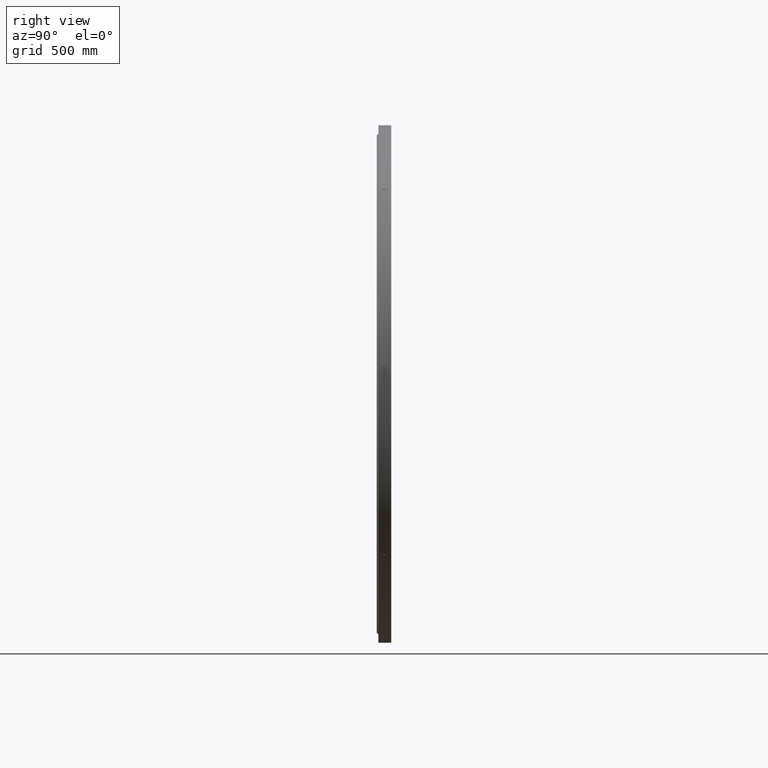
[diagram: clean part render]
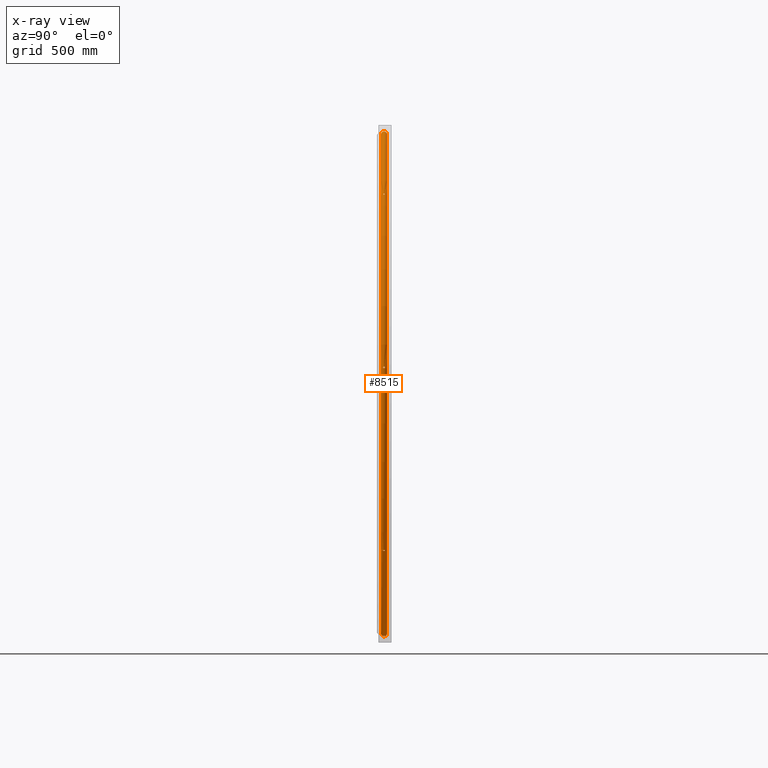
[diagram: x-ray — body ghosted, one internal face saturated and labeled with its STEP entity id]
A machine part, right view, then the same camera in x-ray: the body is ghosted and one INTERNAL B-rep face — a face not visible from any outside direction — is saturated and labeled: STEP entity #8515.
In plain terms, the highlighted toroidal blend (fillet) surface has major radius 1537 mm and minor (blend) radius 19.05 mm.
Its self-contained STEP definition (entity closure, byte-faithful):
#68 = CARTESIAN_POINT ( 'NONE',  ( 1026.068574547752000, 4.470684510650206000, 1169.110701674504100 ) ) ;
#88 = CARTESIAN_POINT ( 'NONE',  ( 1167.833040331638100, 3.576250378631848500, -1027.816151715354200 ) ) ;
#179 = CARTESIAN_POINT ( 'NONE',  ( 103.7335033434232400, 4.044070703040351800, -1552.153688640694600 ) ) ;
#354 = CARTESIAN_POINT ( 'NONE',  ( 1022.863481409826200, 1.996019600897573500, 1172.485257891654600 ) ) ;
#374 = CARTESIAN_POINT ( 'NONE',  ( 1171.456206885986100, 3.575814996484480100, -1023.684840655134800 ) ) ;
#1028 = CARTESIAN_POINT ( 'NONE',  ( 8.532063944244328000E-014, -5.370612075227947800E-014, 1537.000000000000000 ) ) ;
#1084 = CARTESIAN_POINT ( 'NONE',  ( 106.1132180557976500, -1.172487871866465300, -1552.393664083832200 ) ) ;
#1386 = CARTESIAN_POINT ( 'NONE',  ( 102.0279119823355000, -4.500108279681671600, -1552.161200736631600 ) ) ;
#1678 = CARTESIAN_POINT ( 'NONE',  ( 97.50700281360441600, -1.454079378452950000, -1552.938236373818700 ) ) ;
#2036 = CARTESIAN_POINT ( 'NONE',  ( 1172.483974999051700, -1.999570336455599500, -1022.864435346470400 ) ) ;
#2335 = CARTESIAN_POINT ( 'NONE',  ( 1169.112051382850500, -4.471239560161251300, -1026.066839112064400 ) ) ;
#2393 = B_SPLINE_CURVE_WITH_KNOTS ( 'NONE', 3,
 ( #25312, #65263, #45415, #5467, #52172, #12166, #58871, #18854, #65565, #25583, #72256, #32263, #78972, #38964, #85698, #45699, #5740, #52469, #12435, #59159, #19130, #65846, #25868, #72534, #32542, #79260, #39252, #85985, #45987, #6021, #52746, #12716, #59433, #19413 ),
 .UNSPECIFIED., .F., .F.,
 ( 4, 2, 2, 2, 2, 2, 2, 2, 2, 2, 2, 2, 2, 2, 2, 2, 4 ),
 ( 0.02598670309123746500, 0.02686895547364308000, 0.02775120785604869400, 0.02863346023845430800, 0.02951571262085992500, 0.03039796500326554000, 0.03128021738567115400, 0.03216246976807676800, 0.03304472215048238200, 0.03392697453288799600, 0.03480922691529361000, 0.03569147929769922500, 0.03657373168010483900, 0.03745598406251045300, 0.03833823644491607400, 0.03922048882732168100, 0.04010274120972729500 ),
 .UNSPECIFIED. ) ;
#2498 = CARTESIAN_POINT ( 'NONE',  ( 1552.283380692319300, -2.746224431392914100, 105.3265789109691800 ) ) ;
#2619 = CARTESIAN_POINT ( 'NONE',  ( 1166.942711324359800, -0.5938470493316743100, -1029.327106995369400 ) ) ;
#2789 = CARTESIAN_POINT ( 'NONE',  ( 1552.329564649464400, -4.269282064224287700, 100.2894174699930400 ) ) ;
#3084 = CARTESIAN_POINT ( 'NONE',  ( 1553.006198644755800, -2.379884953661671500E-008, 97.27974851409064200 ) ) ;
#3779 = DIRECTION ( 'NONE',  ( 5.551115123125782700E-017, -3.494217355385782500E-017, 1.000000000000000000 ) ) ;
#4013 = CARTESIAN_POINT ( 'NONE',  ( 1024.760779234557500, -4.354733526317538400, 1170.293896168964700 ) ) ;
#4296 = CARTESIAN_POINT ( 'NONE',  ( 1029.146030456351600, -1.451937309999991500, 1167.040614477145000 ) ) ;
#5467 = CARTESIAN_POINT ( 'NONE',  ( 1552.963598053093400, 1.168464269267725000, 97.42154169125096500 ) ) ;
#5740 = CARTESIAN_POINT ( 'NONE',  ( 1552.199525603559800, 4.500199193800280100, 101.4428536068104600 ) ) ;
#6021 = CARTESIAN_POINT ( 'NONE',  ( 1552.379851877802100, 1.453914780385336100, 106.0262772918575500 ) ) ;
#6035 = VERTEX_POINT ( 'NONE', #14049 ) ;
#6362 = CARTESIAN_POINT ( 'NONE',  ( 1553.006198644755800, -2.379884953661671500E-008, 97.27974851409064200 ) ) ;
#6455 = CARTESIAN_POINT ( 'NONE',  ( 1029.145221252766100, 1.454341194157232000, 1167.041060527069500 ) ) ;
#6480 = CARTESIAN_POINT ( 'NONE',  ( 1166.928384132883100, -2.379472440795326900E-008, -1029.354044440016000 ) ) ;
#6485 = CARTESIAN_POINT ( 'NONE',  ( 1166.928384133160100, 0.2964284489836880300, -1029.354044440261100 ) ) ;
#6584 = CARTESIAN_POINT ( 'NONE',  ( 99.00553180447890600, 3.575238093566202000, -1552.558716721340300 ) ) ;
#6743 = CARTESIAN_POINT ( 'NONE',  ( 1025.394509455408300, 4.499804513672133400, 1169.692446123640100 ) ) ;
#6770 = CARTESIAN_POINT ( 'NONE',  ( 1168.255665788939700, 4.042462189773858400, -1027.191067419098500 ) ) ;
#6867 = CARTESIAN_POINT ( 'NONE',  ( 104.4863102507171000, 3.578598399700045000, -1552.198834721488300 ) ) ;
#7044 = CARTESIAN_POINT ( 'NONE',  ( 1022.673818678627800, 1.166746327907014900, 1172.742693264585800 ) ) ;
#7065 = CARTESIAN_POINT ( 'NONE',  ( 1171.958574252929600, 2.973008810106527300, -1023.270254667113500 ) ) ;
#7449 = B_SPLINE_CURVE_WITH_KNOTS ( 'NONE', 3,
 ( #53194, #6485, #59897, #19877, #66576, #26614, #73280, #33264, #80005, #39993, #88, #46725, #6770, #53491, #13439, #60181, #20167, #66878, #26894, #73553, #33567, #80285, #40267, #374, #47026, #7065, #53768, #13729, #60463, #20468, #67177, #27186, #73839, #33838 ),
 .UNSPECIFIED., .F., .F.,
 ( 4, 2, 2, 2, 2, 2, 2, 2, 2, 2, 2, 2, 2, 2, 2, 2, 4 ),
 ( 0.02122922010065950900, 0.02211150302345888200, 0.02299378594625825800, 0.02387606886905763200, 0.02475835179185700800, 0.02564063471465638500, 0.02652291763745576200, 0.02740520056025513900, 0.02828748348305451500, 0.02916976640585389200, 0.03005204932865326500, 0.03093433225145264200, 0.03181661517425202200, 0.03269889809705139900, 0.03358118101985076800, 0.03446346394265014500, 0.03534574686544952200 ),
 .UNSPECIFIED. ) ;
#7554 = EDGE_CURVE ( 'NONE', #23698, #37931, #55807, .T. ) ;
#7759 = DIRECTION ( 'NONE',  ( -1.173697223544190700E-016, 1.000000000000000000, 0.0000000000000000000 ) ) ;
#7810 = CARTESIAN_POINT ( 'NONE',  ( 105.7980349890331100, -1.997238590760712600, -1552.345901393013500 ) ) ;
#8033 = VERTEX_POINT ( 'NONE', #49688 ) ;
#8107 = CARTESIAN_POINT ( 'NONE',  ( 101.1477059528877900, -4.471070812201745100, -1552.225953568388800 ) ) ;
#8398 = CARTESIAN_POINT ( 'NONE',  ( 97.30857004170768200, -0.5912034960023623300, -1552.997390006934000 ) ) ;
#8424 = EDGE_CURVE ( 'NONE', #51907, #47244, #50799, .T. ) ;
#8515 = ADVANCED_FACE ( 'NONE', ( #54902, #68420, #17220, #50712, #32869 ), #15131, .F. ) ;
#8763 = CARTESIAN_POINT ( 'NONE',  ( 1172.106995932287900, -2.746589710825422200, -1023.153162167013100 ) ) ;
#9054 = CARTESIAN_POINT ( 'NONE',  ( 1168.577308777239300, -4.268780503025776200, -1026.748494504847700 ) ) ;
#9099 = CIRCLE ( 'NONE', #44732, 1538.905000000000000 ) ;
#9211 = CARTESIAN_POINT ( 'NONE',  ( 1552.218705381422500, -3.391153007399380300, 104.7167138396414700 ) ) ;
#9328 = CARTESIAN_POINT ( 'NONE',  ( 1166.928384132883100, -2.379472440795326900E-008, -1029.354044440016000 ) ) ;
#9448 = VERTEX_POINT ( 'NONE', #70225 ) ;
#9500 = CARTESIAN_POINT ( 'NONE',  ( 1552.462132327333600, -3.902539688285838500, 99.48926361233323200 ) ) ;
#10441 = CARTESIAN_POINT ( 'NONE',  ( 1022.674477220824100, -1.170606949249357400, 1172.741786228228400 ) ) ;
#10725 = CARTESIAN_POINT ( 'NONE',  ( 1025.398286893566100, -4.499978597260449600, 1169.689077780666100 ) ) ;
#11023 = CARTESIAN_POINT ( 'NONE',  ( 1029.327064853144700, -0.5943697600977188000, 1166.942733525543200 ) ) ;
#11422 = EDGE_LOOP ( 'NONE', ( #19603, #77514 ) ) ;
#11985 = ORIENTED_EDGE ( 'NONE', *, *, #51910, .T. ) ;
#12166 = CARTESIAN_POINT ( 'NONE',  ( 1552.874537766309500, 1.999088511272853100, 97.72974613083052000 ) ) ;
#12435 = CARTESIAN_POINT ( 'NONE',  ( 1552.148806258800500, 4.470659245727584400, 102.3262388793037400 ) ) ;
#12699 = CARTESIAN_POINT ( 'NONE',  ( 97.27974851410951400, 0.2980516688028156900, -1553.006198645127100 ) ) ;
#12716 = CARTESIAN_POINT ( 'NONE',  ( 1552.412657750543300, 0.5888660772816694000, 106.2311120280972000 ) ) ;
#13129 = CARTESIAN_POINT ( 'NONE',  ( 1028.816909656905000, 2.262411340733878600, 1167.224405065906700 ) ) ;
#13251 = CARTESIAN_POINT ( 'NONE',  ( 99.74940251727159100, 4.043252629921354900, -1552.414991605765000 ) ) ;
#13417 = CARTESIAN_POINT ( 'NONE',  ( 1024.762489438520600, 4.355202837823058300, 1170.292249436456400 ) ) ;
#13439 = CARTESIAN_POINT ( 'NONE',  ( 1168.749308649423000, 4.355278607986430300, -1026.521850149995300 ) ) ;
#13541 = CARTESIAN_POINT ( 'NONE',  ( 105.1376346369368100, 2.974289664004921900, -1552.261069401329000 ) ) ;
#13700 = CARTESIAN_POINT ( 'NONE',  ( 1022.587486172944800, 0.2959550994974102800, 1172.862496469065900 ) ) ;
#13729 = CARTESIAN_POINT ( 'NONE',  ( 1172.372687205288700, 2.254065275659793000, -1022.947963432681700 ) ) ;
#14049 = CARTESIAN_POINT ( 'NONE',  ( 106.2604788232326600, -2.377304829897340700E-008, -1552.417570481685100 ) ) ;
#14468 = CARTESIAN_POINT ( 'NONE',  ( 105.3257107417843200, -2.747337632154160900, -1552.283275772996800 ) ) ;
#14761 = CARTESIAN_POINT ( 'NONE',  ( 100.2864422428050400, -4.268193813650462700, -1552.330005886407700 ) ) ;
#15028 = CARTESIAN_POINT ( 'NONE',  ( 97.27974851408521300, -2.377324706183988700E-008, -1553.006198644756500 ) ) ;
#15131 = TOROIDAL_SURFACE ( 'NONE', #40063, 1537.000000000000000, 19.05000000000000100 ) ;
#15397 = CARTESIAN_POINT ( 'NONE',  ( 1171.629588240621600, -3.392035806027530400, -1023.539030243317600 ) ) ;
#15619 = VERTEX_POINT ( 'NONE', #55590 ) ;
#15685 = CARTESIAN_POINT ( 'NONE',  ( 1168.106197821670100, -3.902779886541058100, -1027.406713632281900 ) ) ;
#15851 = CARTESIAN_POINT ( 'NONE',  ( 1552.166456701556200, -3.903578588392556000, 103.9972053930104500 ) ) ;
#16136 = CARTESIAN_POINT ( 'NONE',  ( 1552.607530741587700, -3.391291546224850500, 98.78429020835216100 ) ) ;
#17090 = CARTESIAN_POINT ( 'NONE',  ( 1022.864938066164100, -2.001347151743434700, 1172.483300818994600 ) ) ;
#17220 = FACE_BOUND ( 'NONE', #42985, .T. ) ;
#17374 = CARTESIAN_POINT ( 'NONE',  ( 1026.068604916877800, -4.470841004603098400, 1169.110628225034800 ) ) ;
#17668 = CARTESIAN_POINT ( 'NONE',  ( 1029.354044440012100, -2.378793016543926100E-008, 1166.928384132886500 ) ) ;
#18854 = CARTESIAN_POINT ( 'NONE',  ( 1552.750579554100300, 2.749746509675981400, 98.19078100115830000 ) ) ;
#18958 = EDGE_CURVE ( 'NONE', #27614, #43774, #69455, .T. ) ;
#19130 = CARTESIAN_POINT ( 'NONE',  ( 1552.139630518416700, 4.267670340619402800, 103.1928504492054400 ) ) ;
#19413 = CARTESIAN_POINT ( 'NONE',  ( 1552.417570481684600, -2.376146852504746100E-008, 106.2604788232380700 ) ) ;
#19455 = ORIENTED_EDGE ( 'NONE', *, *, #76942, .T. ) ;
#19560 = CARTESIAN_POINT ( 'NONE',  ( 1029.327930915142400, 0.5879700314654107100, 1166.942269198008700 ) ) ;
#19603 = ORIENTED_EDGE ( 'NONE', *, *, #8424, .T. ) ;
#19850 = CARTESIAN_POINT ( 'NONE',  ( 1028.366859596643100, 2.975595670417421300, 1167.488445950109700 ) ) ;
#19877 = CARTESIAN_POINT ( 'NONE',  ( 1166.998404929896000, 1.167215912675726400, -1029.223878913733200 ) ) ;
#19977 = CARTESIAN_POINT ( 'NONE',  ( 100.5684513968034300, 4.354913208691911600, -1552.291310096133000 ) ) ;
#20147 = CARTESIAN_POINT ( 'NONE',  ( 1024.185095084927800, 4.042021237418400600, 1170.891959987583300 ) ) ;
#20167 = CARTESIAN_POINT ( 'NONE',  ( 1169.300670464422900, 4.500204480252392600, -1025.841098262904300 ) ) ;
#20262 = CARTESIAN_POINT ( 'NONE',  ( 105.6542954535019900, 2.262027608300856600, -1552.325459025035600 ) ) ;
#20468 = CARTESIAN_POINT ( 'NONE',  ( 1172.670270857164500, 1.453608511794803000, -1022.726385284425300 ) ) ;
#20705 = CIRCLE ( 'NONE', #26563, 19.05000000000000100 ) ;
#20726 = AXIS2_PLACEMENT_3D ( 'NONE', #71668, #31657, #78384 ) ;
#20810 = CIRCLE ( 'NONE', #45006, 1538.905000000000000 ) ;
#21206 = CARTESIAN_POINT ( 'NONE',  ( 104.7163894540012000, -3.391646612059155500, -1552.218658760124800 ) ) ;
#21502 = CARTESIAN_POINT ( 'NONE',  ( 99.49071104553148400, -3.903583895031618800, -1552.461834586414400 ) ) ;
#22161 = CARTESIAN_POINT ( 'NONE',  ( 1171.085145407885900, -3.903044158585703200, -1024.009784827401100 ) ) ;
#22319 = CARTESIAN_POINT ( 'NONE',  ( 1552.417570481315400, -0.2962567708934114000, 106.2604788232146800 ) ) ;
#22433 = CARTESIAN_POINT ( 'NONE',  ( 1167.709977365512500, -3.390523124674452500, -1028.008890583456200 ) ) ;
#22553 = EDGE_LOOP ( 'NONE', ( #36916, #71897 ) ) ;
#22606 = CARTESIAN_POINT ( 'NONE',  ( 1552.139594453312200, -4.268831596709211400, 103.1893225440930700 ) ) ;
#22853 = CARTESIAN_POINT ( 'NONE',  ( 1552.417570481684600, -2.376146852504746100E-008, 106.2604788232380700 ) ) ;
#22890 = CARTESIAN_POINT ( 'NONE',  ( 1552.751351324721100, -2.745698369718898100, 98.18779130385883000 ) ) ;
#22955 = CARTESIAN_POINT ( 'NONE',  ( 1029.354044440012100, -2.378793016543926100E-008, 1166.928384132886500 ) ) ;
#23698 = VERTEX_POINT ( 'NONE', #22853 ) ;
#23856 = CARTESIAN_POINT ( 'NONE',  ( 1023.153002405297200, -2.746284179435490200, 1172.107198205240100 ) ) ;
#24141 = CARTESIAN_POINT ( 'NONE',  ( 1026.747654715371300, -4.269173971483819100, 1168.577927929243500 ) ) ;
#24494 = CARTESIAN_POINT ( 'NONE',  ( -2.224685655509409600E-015, 18.95451067688110000, 6.623118017000307300E-016 ) ) ;
#25028 = EDGE_LOOP ( 'NONE', ( #52397, #67906, #11985, #64251 ) ) ;
#25312 = CARTESIAN_POINT ( 'NONE',  ( 1553.006198644755800, -2.379884953661671500E-008, 97.27974851409064200 ) ) ;
#25583 = CARTESIAN_POINT ( 'NONE',  ( 1552.607580412736300, 3.391014014548511000, 98.78411362342646400 ) ) ;
#25658 = EDGE_CURVE ( 'NONE', #65403, #61868, #20705, .T. ) ;
#25868 = CARTESIAN_POINT ( 'NONE',  ( 1552.166428700329100, 3.903820641655653600, 103.9970112146440300 ) ) ;
#26417 = CARTESIAN_POINT ( 'NONE',  ( 97.42167571745667900, 1.168434361406674800, -1552.963559160347600 ) ) ;
#26563 = AXIS2_PLACEMENT_3D ( 'NONE', #1028, #47717, #7759 ) ;
#26589 = CARTESIAN_POINT ( 'NONE',  ( 1027.812238596074600, 3.579598243953703700, 1167.835611865939000 ) ) ;
#26614 = CARTESIAN_POINT ( 'NONE',  ( 1167.153013100834600, 1.997014415088915100, -1028.943589800386900 ) ) ;
#26703 = CARTESIAN_POINT ( 'NONE',  ( 101.4383756555668600, 4.499802246626555500, -1552.199914658202900 ) ) ;
#26867 = CARTESIAN_POINT ( 'NONE',  ( 1023.684075777377500, 3.575035556950150200, 1171.457082019563100 ) ) ;
#26894 = CARTESIAN_POINT ( 'NONE',  ( 1169.891966017808700, 4.470325513127902700, -1025.177844611158400 ) ) ;
#26988 = CARTESIAN_POINT ( 'NONE',  ( 106.0262743802301100, 1.454176687682188000, -1552.379848270134500 ) ) ;
#27186 = CARTESIAN_POINT ( 'NONE',  ( 1172.838482900169800, 0.5874797101241371300, -1022.604614778914500 ) ) ;
#27614 = VERTEX_POINT ( 'NONE', #22955 ) ;
#27912 = CARTESIAN_POINT ( 'NONE',  ( 103.9977191610089700, -3.903156365789787000, -1552.166501555954700 ) ) ;
#28208 = CARTESIAN_POINT ( 'NONE',  ( 98.78191213019917400, -3.388940999387574800, -1552.608085928958000 ) ) ;
#28854 = CARTESIAN_POINT ( 'NONE',  ( 1170.493279330895100, -4.269365576693310500, -1024.563547704898200 ) ) ;
#29013 = CARTESIAN_POINT ( 'NONE',  ( 1552.417570481684600, -2.376146852504746100E-008, 106.2604788232380700 ) ) ;
#29125 = CARTESIAN_POINT ( 'NONE',  ( 1167.389975316641100, -2.744992966766470800, -1028.532242390019300 ) ) ;
#29300 = CARTESIAN_POINT ( 'NONE',  ( 1552.148865370395500, -4.471232150412294700, 102.3232732397476200 ) ) ;
#29581 = CARTESIAN_POINT ( 'NONE',  ( 1552.874665109963200, -1.998256507511435100, 97.72928791289530200 ) ) ;
#30528 = CARTESIAN_POINT ( 'NONE',  ( 1023.538628496826200, -3.391385132191246000, 1171.630082836203400 ) ) ;
#30542 = CARTESIAN_POINT ( 'NONE',  ( 8.320170253002940500E-014, 18.95451067688105000, 1538.905000000000000 ) ) ;
#30789 = CARTESIAN_POINT ( 'NONE',  ( 1027.406963282748800, -3.902553189679820000, 1168.106036012128900 ) ) ;
#31148 = DIRECTION ( 'NONE',  ( 5.551115123125782700E-017, -3.381735992754862400E-017, 1.000000000000000000 ) ) ;
#31657 = DIRECTION ( 'NONE',  ( -1.000000000000000000, -1.173697223544192200E-016, 1.779758311459931500E-016 ) ) ;
#32263 = CARTESIAN_POINT ( 'NONE',  ( 1552.461539730949200, 3.904370529515520900, 99.49245233928203900 ) ) ;
#32542 = CARTESIAN_POINT ( 'NONE',  ( 1552.219096563681700, 3.387389717927626000, 104.7209411408076400 ) ) ;
#32787 = CARTESIAN_POINT ( 'NONE',  ( 97.27974851408521300, -2.377324706183988700E-008, -1553.006198644756500 ) ) ;
#32869 = FACE_OUTER_BOUND ( 'NONE', #25028, .T. ) ;
#33085 = CARTESIAN_POINT ( 'NONE',  ( 97.72982507352985200, 1.999246505626453200, -1552.874515640199000 ) ) ;
#33241 = CARTESIAN_POINT ( 'NONE',  ( 1027.190428046714000, 4.043070734539845100, 1168.256061373328100 ) ) ;
#33264 = CARTESIAN_POINT ( 'NONE',  ( 1167.390512969647900, 2.746680928036315400, -1028.531309560661400 ) ) ;
#33367 = CARTESIAN_POINT ( 'NONE',  ( 102.3253213630553700, 4.470764270604808700, -1552.148840885857700 ) ) ;
#33539 = CARTESIAN_POINT ( 'NONE',  ( 1023.270700846022700, 2.973801303869171100, 1171.958016813694300 ) ) ;
#33567 = CARTESIAN_POINT ( 'NONE',  ( 1170.496970551271700, 4.267651559176118600, -1024.559934848581200 ) ) ;
#33656 = CARTESIAN_POINT ( 'NONE',  ( 106.2314214603214400, 0.5881592850594403700, -1552.412706261180800 ) ) ;
#33838 = CARTESIAN_POINT ( 'NONE',  ( 1172.862496468783800, -2.376774636049053200E-008, -1022.587486172705100 ) ) ;
#34284 = CARTESIAN_POINT ( 'NONE',  ( 106.2604788232326600, -2.377304829897340700E-008, -1552.417570481685100 ) ) ;
#34293 = CIRCLE ( 'NONE', #20726, 19.05000000000001100 ) ;
#34577 = CARTESIAN_POINT ( 'NONE',  ( 103.1864108472687000, -4.269985030451879400, -1552.139528240124000 ) ) ;
#34857 = CARTESIAN_POINT ( 'NONE',  ( 98.18670527353587800, -2.744379599336644700, -1552.751625743212600 ) ) ;
#35217 = CARTESIAN_POINT ( 'NONE',  ( 1172.862496468783800, -2.376774636049053200E-008, -1022.587486172705100 ) ) ;
#35523 = CARTESIAN_POINT ( 'NONE',  ( 1169.890484043817900, -4.470716295608984800, -1025.179394489807900 ) ) ;
#35685 = CARTESIAN_POINT ( 'NONE',  ( 1552.379887656223000, -1.453678916686151000, 106.0265530792288600 ) ) ;
#35807 = CARTESIAN_POINT ( 'NONE',  ( 1167.153775076259500, -2.000555040280907400, -1028.942221145196100 ) ) ;
#35969 = CARTESIAN_POINT ( 'NONE',  ( 1552.199594584710900, -4.500036516107321000, 101.4423986251895500 ) ) ;
#36248 = CARTESIAN_POINT ( 'NONE',  ( 1552.963342251541900, -1.171270613879505000, 97.42240591737561300 ) ) ;
#36909 = CARTESIAN_POINT ( 'NONE',  ( 1022.587486172701100, -2.378512238209269100E-008, 1172.862496468787200 ) ) ;
#36916 = ORIENTED_EDGE ( 'NONE', *, *, #66592, .T. ) ;
#37208 = CARTESIAN_POINT ( 'NONE',  ( 1024.010134198959100, -3.903413199811064600, 1171.084743261205400 ) ) ;
#37493 = CARTESIAN_POINT ( 'NONE',  ( 1028.008352332648200, -3.391175505510066700, 1167.710307600744700 ) ) ;
#37783 = EDGE_CURVE ( 'NONE', #9448, #65403, #9099, .T. ) ;
#37931 = VERTEX_POINT ( 'NONE', #6362 ) ;
#38088 = ORIENTED_EDGE ( 'NONE', *, *, #49242, .T. ) ;
#38964 = CARTESIAN_POINT ( 'NONE',  ( 1552.329003408244000, 4.270731928432797800, 100.2930478346999900 ) ) ;
#39252 = CARTESIAN_POINT ( 'NONE',  ( 1552.283538847921400, 2.744654752209333200, 105.3279456169721900 ) ) ;
#39509 = CARTESIAN_POINT ( 'NONE',  ( 2.224685655509409900E-015, -18.95451067688110700, -6.623118017000310300E-016 ) ) ;
#39688 = CARTESIAN_POINT ( 'NONE',  ( 1029.354044440255600, 0.2953037956531539600, 1166.928384133163000 ) ) ;
#39800 = CARTESIAN_POINT ( 'NONE',  ( 98.18760006352822200, 2.745590703248596200, -1552.751394756518700 ) ) ;
#39969 = CARTESIAN_POINT ( 'NONE',  ( 1026.519457201447000, 4.355960980283580100, 1168.751194605165200 ) ) ;
#39993 = CARTESIAN_POINT ( 'NONE',  ( 1167.708604893056400, 3.388149640080345000, -1028.011081401067300 ) ) ;
#40063 = AXIS2_PLACEMENT_3D ( 'NONE', #70281, #63561, #3779 ) ;
#40077 = CARTESIAN_POINT ( 'NONE',  ( 103.1854855981094700, 4.270298610079241700, -1552.139517109970000 ) ) ;
#40242 = CARTESIAN_POINT ( 'NONE',  ( 1022.948106681987000, 2.254288017358791600, 1172.372508826525700 ) ) ;
#40267 = CARTESIAN_POINT ( 'NONE',  ( 1171.085269509116900, 3.903030884689856700, -1024.009657497351600 ) ) ;
#40361 = CARTESIAN_POINT ( 'NONE',  ( 106.2604788232326600, -2.377304829897340700E-008, -1552.417570481685100 ) ) ;
#41000 = CARTESIAN_POINT ( 'NONE',  ( 106.2306858786740200, -0.5926132966864309200, -1552.412586419569800 ) ) ;
#41287 = CARTESIAN_POINT ( 'NONE',  ( 102.3271646772008400, -4.470496919813526500, -1552.148784067705500 ) ) ;
#41560 = CARTESIAN_POINT ( 'NONE',  ( 97.72948210234849900, -1.998521963296456100, -1552.874612251706800 ) ) ;
#41562 = EDGE_CURVE ( 'NONE', #6035, #8033, #51217, .T. ) ;
#41934 = CARTESIAN_POINT ( 'NONE',  ( 1172.670708502304000, -1.452658254877633900, -1022.726055751795000 ) ) ;
#42135 = B_SPLINE_CURVE_WITH_KNOTS ( 'NONE', 3,
 ( #32787, #12699, #66393, #26417, #73085, #33085, #79811, #39800, #86541, #46538, #6584, #53292, #13251, #59985, #19977, #66669, #26703, #73373, #33367, #80098, #40077, #179, #46822, #6867, #53588, #13541, #60281, #20262, #66974, #26988, #73649, #33656, #80383, #40361 ),
 .UNSPECIFIED., .F., .F.,
 ( 4, 2, 2, 2, 2, 2, 2, 2, 2, 2, 2, 2, 2, 2, 2, 2, 4 ),
 ( 0.01497338539156013600, 0.01585561320893212600, 0.01673784102630411800, 0.01762006884367611100, 0.01850229666104810000, 0.01938452447842009200, 0.02026675229579208400, 0.02114898011316407300, 0.02203120793053606500, 0.02291343574790805800, 0.02379566356528004700, 0.02467789138265204200, 0.02556011920002403100, 0.02644234701739602400, 0.02732457483476801600, 0.02820680265214000500, 0.02908903046951199700 ),
 .UNSPECIFIED. ) ;
#42214 = CARTESIAN_POINT ( 'NONE',  ( 1169.300758517443000, -4.499967667221310900, -1025.841084131209300 ) ) ;
#42395 = CARTESIAN_POINT ( 'NONE',  ( 1552.325672693656500, -2.259386536248035900, 105.6558605907814600 ) ) ;
#42516 = CARTESIAN_POINT ( 'NONE',  ( 1166.998778831599600, -1.169803875443324000, -1029.223190104280500 ) ) ;
#42690 = CARTESIAN_POINT ( 'NONE',  ( 1552.291331815210900, -4.354846234684939300, 100.5683540602836400 ) ) ;
#42985 = EDGE_LOOP ( 'NONE', ( #56402, #19455 ) ) ;
#42994 = CARTESIAN_POINT ( 'NONE',  ( 1553.006198644388000, -0.2950003518526571100, 97.27974851406823100 ) ) ;
#43774 = VERTEX_POINT ( 'NONE', #47681 ) ;
#43947 = CARTESIAN_POINT ( 'NONE',  ( 1024.562782915152600, -4.268946468469008200, 1170.494074852435700 ) ) ;
#44218 = CARTESIAN_POINT ( 'NONE',  ( 1028.841359347311300, -2.272350618013113400, 1167.209772125351900 ) ) ;
#44732 = AXIS2_PLACEMENT_3D ( 'NONE', #24494, #71179, #31148 ) ;
#45006 = AXIS2_PLACEMENT_3D ( 'NONE', #39509, #86259, #46259 ) ;
#45415 = CARTESIAN_POINT ( 'NONE',  ( 1552.997566476358300, 0.5877582078850051000, 97.30798256148146700 ) ) ;
#45699 = CARTESIAN_POINT ( 'NONE',  ( 1552.226168429309400, 4.470664930122493000, 101.1458822238850800 ) ) ;
#45987 = CARTESIAN_POINT ( 'NONE',  ( 1552.345957101971900, 1.996368941314546000, 105.7984117570357200 ) ) ;
#46259 = DIRECTION ( 'NONE',  ( 5.551115123125782700E-017, -3.381735992754862400E-017, 1.000000000000000000 ) ) ;
#46416 = CARTESIAN_POINT ( 'NONE',  ( 1029.223745253218600, 1.168020165381282500, 1166.998476929294800 ) ) ;
#46538 = CARTESIAN_POINT ( 'NONE',  ( 98.78245487991131300, 3.389402588704844900, -1552.607965357133700 ) ) ;
#46704 = CARTESIAN_POINT ( 'NONE',  ( 1025.840223358656200, 4.500193501914338900, 1169.301441242353600 ) ) ;
#46725 = CARTESIAN_POINT ( 'NONE',  ( 1168.107639306013900, 3.904355973178911000, -1027.404584429163200 ) ) ;
#46822 = CARTESIAN_POINT ( 'NONE',  ( 103.9968081356553400, 3.903689766100749000, -1552.166450900799000 ) ) ;
#47003 = CARTESIAN_POINT ( 'NONE',  ( 1022.726424378263700, 1.453894635874016600, 1172.670215477460700 ) ) ;
#47026 = CARTESIAN_POINT ( 'NONE',  ( 1171.634213142375500, 3.386630572898750500, -1023.535197320984300 ) ) ;
#47244 = VERTEX_POINT ( 'NONE', #6480 ) ;
#47681 = CARTESIAN_POINT ( 'NONE',  ( 1022.587486172701100, -2.378512238209269100E-008, 1172.862496468787200 ) ) ;
#47717 = DIRECTION ( 'NONE',  ( 1.000000000000000000, 1.173697223544192200E-016, -5.551115123125782100E-017 ) ) ;
#47769 = CARTESIAN_POINT ( 'NONE',  ( 106.0265296120708500, -1.453341468799070900, -1552.379889066915200 ) ) ;
#48060 = CARTESIAN_POINT ( 'NONE',  ( 101.4393397658916300, -4.499891158097672600, -1552.199830063927500 ) ) ;
#48350 = CARTESIAN_POINT ( 'NONE',  ( 97.42146097587509200, -1.167608529777470100, -1552.963622935110400 ) ) ;
#48716 = CARTESIAN_POINT ( 'NONE',  ( 1172.369482646574200, -2.260410094834267800, -1022.950417775777300 ) ) ;
#48954 = B_SPLINE_CURVE_WITH_KNOTS ( 'NONE', 3,
 ( #36909, #76940, #50423, #10441, #57145, #17090, #63818, #23856, #70528, #30528, #77217, #37208, #83950, #43947, #4013, #50709, #10725, #57434, #17374, #64101, #24141, #70814, #30789, #77510, #37493, #84234, #44218, #4296, #50989, #11023, #57719, #17668 ),
 .UNSPECIFIED., .F., .F.,
 ( 4, 2, 2, 2, 2, 2, 2, 2, 2, 2, 2, 2, 2, 2, 2, 4 ),
 ( 0.01182893884503534800, 0.01271104230688397900, 0.01359314576873261000, 0.01447524923058124100, 0.01535735269242987200, 0.01623945615427850300, 0.01712155961612713300, 0.01800366307797576400, 0.01888576653982439500, 0.01976787000167302600, 0.02064997346352165700, 0.02153207692537028800, 0.02241418038721891900, 0.02417838731091593400, 0.02506049077276426400, 0.02594259423461259600 ),
 .UNSPECIFIED. ) ;
#49005 = CARTESIAN_POINT ( 'NONE',  ( 1168.747698959809900, -4.354720499850816200, -1026.523884220678400 ) ) ;
#49175 = CARTESIAN_POINT ( 'NONE',  ( 1552.260817230896900, -2.976798499437016200, 105.1352388076335700 ) ) ;
#49242 = EDGE_CURVE ( 'NONE', #8033, #6035, #42135, .T. ) ;
#49304 = CARTESIAN_POINT ( 'NONE',  ( 1166.928384132606400, -0.2964074633024201300, -1029.354044439771300 ) ) ;
#49473 = CARTESIAN_POINT ( 'NONE',  ( 1552.414826262548100, -4.043775393130507800, 99.75024742821136700 ) ) ;
#49688 = CARTESIAN_POINT ( 'NONE',  ( 97.27974851408521300, -2.377324706183988700E-008, -1553.006198644756500 ) ) ;
#50423 = CARTESIAN_POINT ( 'NONE',  ( 1022.605217794397200, -0.5941232765770430000, 1172.837643875816900 ) ) ;
#50709 = CARTESIAN_POINT ( 'NONE',  ( 1025.180927778516900, -4.471094240491265000, 1169.889020537797500 ) ) ;
#50712 = FACE_BOUND ( 'NONE', #22553, .T. ) ;
#50799 = B_SPLINE_CURVE_WITH_KNOTS ( 'NONE', 3,
 ( #35217, #75239, #68555, #81961, #41934, #2036, #48716, #8763, #55462, #15397, #62140, #22161, #68836, #28854, #75527, #35523, #82255, #42214, #2335, #49005, #9054, #55759, #15685, #62430, #22433, #69144, #29125, #75815, #35807, #82536, #42516, #2619, #49304, #9328 ),
 .UNSPECIFIED., .F., .F.,
 ( 4, 2, 2, 2, 2, 2, 2, 2, 2, 2, 2, 2, 2, 2, 2, 2, 4 ),
 ( 0.007113694982999097300, 0.007995915302852872300, 0.008878135622706647200, 0.009760355942560423900, 0.01064257626241420100, 0.01152479658226797600, 0.01240701690212175200, 0.01328923722197552700, 0.01417145754182930600, 0.01505367786168308000, 0.01593589818153685200, 0.01681811850139063000, 0.01770033882124440500, 0.01858255914109818000, 0.01946477946095195500, 0.02034699978080573000, 0.02122922010065950900 ),
 .UNSPECIFIED. ) ;
#50989 = CARTESIAN_POINT ( 'NONE',  ( 1029.222922908173600, -1.170994804229524000, 1166.998923532977400 ) ) ;
#51217 = B_SPLINE_CURVE_WITH_KNOTS ( 'NONE', 3,
 ( #34284, #74291, #41000, #1084, #47769, #7810, #54521, #14468, #61202, #21206, #67904, #27912, #74560, #34577, #81304, #41287, #1386, #48060, #8107, #54807, #14761, #61476, #21502, #68191, #28208, #74869, #34857, #81605, #41560, #1678, #48350, #8398, #55096, #15028 ),
 .UNSPECIFIED., .F., .F.,
 ( 4, 2, 2, 2, 2, 2, 2, 2, 2, 2, 2, 2, 2, 2, 2, 2, 4 ),
 ( 0.0008533462416290474400, 0.001735848688499740400, 0.002618351135370433300, 0.003500853582241126400, 0.004383356029111819400, 0.005265858475982512100, 0.006148360922853204700, 0.007030863369723898200, 0.007913365816594590900, 0.008795868263465284400, 0.009678370710335977900, 0.01056087315720667100, 0.01144337560407736300, 0.01232587805094805700, 0.01320838049781875000, 0.01409088294468944200, 0.01497338539156013600 ),
 .UNSPECIFIED. ) ;
#51407 = EDGE_CURVE ( 'NONE', #47244, #51907, #7449, .T. ) ;
#51907 = VERTEX_POINT ( 'NONE', #52728 ) ;
#51910 = EDGE_CURVE ( 'NONE', #15619, #61868, #20810, .T. ) ;
#52172 = CARTESIAN_POINT ( 'NONE',  ( 1552.938210672343800, 1.454370014233159700, 97.50708915250484700 ) ) ;
#52397 = ORIENTED_EDGE ( 'NONE', *, *, #37783, .F. ) ;
#52469 = CARTESIAN_POINT ( 'NONE',  ( 1552.160890803892900, 4.499798700472032600, 102.0337776418736000 ) ) ;
#52728 = CARTESIAN_POINT ( 'NONE',  ( 1172.862496468783800, -2.376774636049053200E-008, -1022.587486172705100 ) ) ;
#52746 = CARTESIAN_POINT ( 'NONE',  ( 1552.393904668369500, 1.166650801845128300, 106.1147279426137700 ) ) ;
#53169 = CARTESIAN_POINT ( 'NONE',  ( 1028.942799795839800, 1.998967475792899000, 1167.153454229494900 ) ) ;
#53194 = CARTESIAN_POINT ( 'NONE',  ( 1166.928384132883100, -2.379472440795326900E-008, -1029.354044440016000 ) ) ;
#53292 = CARTESIAN_POINT ( 'NONE',  ( 99.49152699963200100, 3.904071643984336600, -1552.461680342943300 ) ) ;
#53462 = CARTESIAN_POINT ( 'NONE',  ( 1025.179130525364600, 4.470600720504221700, 1169.890751186822600 ) ) ;
#53491 = CARTESIAN_POINT ( 'NONE',  ( 1168.575549711378500, 4.267780710238204400, -1026.750846451445300 ) ) ;
#53588 = CARTESIAN_POINT ( 'NONE',  ( 104.7164307488210300, 3.391569378513814100, -1552.218665865554600 ) ) ;
#53742 = CARTESIAN_POINT ( 'NONE',  ( 1022.604737242002000, 0.5884756030808543400, 1172.838313469872700 ) ) ;
#53768 = CARTESIAN_POINT ( 'NONE',  ( 1172.107048939435800, 2.746895782093116800, -1023.153100640256100 ) ) ;
#54521 = CARTESIAN_POINT ( 'NONE',  ( 105.6550893021349500, -2.260696402516476000, -1552.325567078384000 ) ) ;
#54807 = CARTESIAN_POINT ( 'NONE',  ( 100.5697426488236300, -4.355247179549597700, -1552.291147425524500 ) ) ;
#54902 = FACE_BOUND ( 'NONE', #62845, .T. ) ;
#55096 = CARTESIAN_POINT ( 'NONE',  ( 97.27974851406089800, -0.2981444971314356500, -1553.006198644385000 ) ) ;
#55462 = CARTESIAN_POINT ( 'NONE',  ( 1171.956859914238300, -2.975677934739193700, -1023.271600763564000 ) ) ;
#55590 = CARTESIAN_POINT ( 'NONE',  ( -2.738878964297246000E-013, -18.95451067688105700, -1538.905000000000000 ) ) ;
#55759 = CARTESIAN_POINT ( 'NONE',  ( 1168.257251473563900, -4.043815976478115600, -1027.188817034592400 ) ) ;
#55807 = B_SPLINE_CURVE_WITH_KNOTS ( 'NONE', 3,
 ( #29013, #22319, #69021, #75688, #35685, #82415, #42395, #2498, #49175, #9211, #55923, #15851, #62596, #22606, #69310, #29300, #75972, #35969, #82706, #42690, #2789, #49473, #9500, #56201, #16136, #62880, #22890, #69592, #29581, #76269, #36248, #82998, #42994, #3084 ),
 .UNSPECIFIED., .F., .F.,
 ( 4, 2, 2, 2, 2, 2, 2, 2, 2, 2, 2, 2, 2, 2, 2, 2, 4 ),
 ( 0.01187298027502871300, 0.01275508795104176100, 0.01363719562705480700, 0.01451930330306785500, 0.01540141097908090000, 0.01628351865509394800, 0.01716562633110699600, 0.01804773400712004300, 0.01892984168313308800, 0.01981194935914613900, 0.02069405703515918300, 0.02157616471117223100, 0.02245827238718527800, 0.02334038006319832200, 0.02422248773921137400, 0.02510459541522441800, 0.02598670309123746500 ),
 .UNSPECIFIED. ) ;
#55923 = CARTESIAN_POINT ( 'NONE',  ( 1552.199045946148800, -3.576531183183841600, 104.4891916879596300 ) ) ;
#56201 = CARTESIAN_POINT ( 'NONE',  ( 1552.558262413494000, -3.576777953610489600, 99.00780673217950300 ) ) ;
#56402 = ORIENTED_EDGE ( 'NONE', *, *, #7554, .T. ) ;
#57145 = CARTESIAN_POINT ( 'NONE',  ( 1022.726104750048900, -1.453061138784544200, 1172.670638194575500 ) ) ;
#57434 = CARTESIAN_POINT ( 'NONE',  ( 1025.840392056735000, -4.500021426398066500, 1169.301348274798600 ) ) ;
#57719 = CARTESIAN_POINT ( 'NONE',  ( 1029.354044439767700, -0.2952500403173256600, 1166.928384132610100 ) ) ;
#58871 = CARTESIAN_POINT ( 'NONE',  ( 1552.835675349105300, 2.262579706546492100, 97.86899294727240300 ) ) ;
#59159 = CARTESIAN_POINT ( 'NONE',  ( 1552.138087129021200, 4.355186513728529700, 102.9051979903295000 ) ) ;
#59433 = CARTESIAN_POINT ( 'NONE',  ( 1552.417570482054100, 0.2963053231574520600, 106.2604788232615400 ) ) ;
#59874 = CARTESIAN_POINT ( 'NONE',  ( 1028.528955071927200, 2.749982598457794600, 1167.391914279273600 ) ) ;
#59897 = CARTESIAN_POINT ( 'NONE',  ( 1166.942375431299300, 0.5891275322892980400, -1029.327733799406100 ) ) ;
#59985 = CARTESIAN_POINT ( 'NONE',  ( 100.2858993898029600, 4.267978549103585100, -1552.330089525875300 ) ) ;
#60156 = CARTESIAN_POINT ( 'NONE',  ( 1024.560076375586500, 4.267672990233076100, 1170.496837438463200 ) ) ;
#60181 = CARTESIAN_POINT ( 'NONE',  ( 1169.111194280418000, 4.470921936842072100, -1026.067929201703500 ) ) ;
#60281 = CARTESIAN_POINT ( 'NONE',  ( 105.3249707973908500, 2.748271699568633600, -1552.283186932621400 ) ) ;
#60446 = CARTESIAN_POINT ( 'NONE',  ( 1022.587486172701100, -2.378512238209269100E-008, 1172.862496468787200 ) ) ;
#60463 = CARTESIAN_POINT ( 'NONE',  ( 1172.485674183637700, 1.994922902956624000, -1022.863170991081800 ) ) ;
#61202 = CARTESIAN_POINT ( 'NONE',  ( 105.1382366231281800, -2.973657008591843000, -1552.261132940750000 ) ) ;
#61476 = CARTESIAN_POINT ( 'NONE',  ( 99.74917390578714600, -4.043169082283674800, -1552.415025495571900 ) ) ;
#61868 = VERTEX_POINT ( 'NONE', #78913 ) ;
#62140 = CARTESIAN_POINT ( 'NONE',  ( 1171.454633781494300, -3.577298524142599400, -1023.686199569052100 ) ) ;
#62430 = CARTESIAN_POINT ( 'NONE',  ( 1167.832931162766000, -3.575972941791328600, -1027.816346765847400 ) ) ;
#62596 = CARTESIAN_POINT ( 'NONE',  ( 1552.153691549444600, -4.044257693000642600, 103.7327657543511400 ) ) ;
#62845 = EDGE_LOOP ( 'NONE', ( #66173, #38088 ) ) ;
#62880 = CARTESIAN_POINT ( 'NONE',  ( 1552.704616980049900, -2.973643252366972200, 98.37198103848561500 ) ) ;
#63561 = DIRECTION ( 'NONE',  ( 1.173697223544192200E-016, -1.000000000000000000, -3.494217355385783800E-017 ) ) ;
#63818 = CARTESIAN_POINT ( 'NONE',  ( 1022.950144033473200, -2.259675920733430000, 1172.369841627248900 ) ) ;
#64101 = CARTESIAN_POINT ( 'NONE',  ( 1026.523347445421200, -4.354805586966864300, 1168.748142387729300 ) ) ;
#64251 = ORIENTED_EDGE ( 'NONE', *, *, #25658, .F. ) ;
#65263 = CARTESIAN_POINT ( 'NONE',  ( 1553.006198645123500, 0.2950486979311979200, 97.27974851411303800 ) ) ;
#65403 = VERTEX_POINT ( 'NONE', #30542 ) ;
#65565 = CARTESIAN_POINT ( 'NONE',  ( 1552.704218935544300, 2.975419170608387500, 98.37363730018601900 ) ) ;
#65846 = CARTESIAN_POINT ( 'NONE',  ( 1552.153860825118300, 4.042156572495204400, 103.7371217265660400 ) ) ;
#66173 = ORIENTED_EDGE ( 'NONE', *, *, #41562, .T. ) ;
#66393 = CARTESIAN_POINT ( 'NONE',  ( 97.30866582727453800, 0.5919623324590310700, -1552.997360904913600 ) ) ;
#66552 = CARTESIAN_POINT ( 'NONE',  ( 1028.008661917873000, 3.390752747260739900, 1167.710122446280400 ) ) ;
#66576 = CARTESIAN_POINT ( 'NONE',  ( 1167.041105847471700, 1.454375632806145700, -1029.145144116129400 ) ) ;
#66592 = EDGE_CURVE ( 'NONE', #43774, #27614, #48954, .T. ) ;
#66651 = EDGE_CURVE ( 'NONE', #9448, #15619, #34293, .T. ) ;
#66669 = CARTESIAN_POINT ( 'NONE',  ( 101.1468246335908800, 4.470969023433772400, -1552.226036048828300 ) ) ;
#66858 = CARTESIAN_POINT ( 'NONE',  ( 1024.010307977247700, 3.903695078322188600, 1171.084525017255600 ) ) ;
#66878 = CARTESIAN_POINT ( 'NONE',  ( 1169.693420524326700, 4.499793327466070600, -1025.393402439635300 ) ) ;
#66974 = CARTESIAN_POINT ( 'NONE',  ( 105.7972516719873300, 1.998874352352148600, -1552.345787731182300 ) ) ;
#67177 = CARTESIAN_POINT ( 'NONE',  ( 1172.742495962872200, 1.167910767058496700, -1022.673961277619500 ) ) ;
#67904 = CARTESIAN_POINT ( 'NONE',  ( 104.4869436230986000, -3.578105992329916300, -1552.198886249968400 ) ) ;
#67906 = ORIENTED_EDGE ( 'NONE', *, *, #66651, .T. ) ;
#68191 = CARTESIAN_POINT ( 'NONE',  ( 99.00501594013300600, -3.574824628326532600, -1552.558828400355900 ) ) ;
#68420 = FACE_BOUND ( 'NONE', #11422, .T. ) ;
#68555 = CARTESIAN_POINT ( 'NONE',  ( 1172.837659901178300, -0.5941995268126408800, -1022.605205867094500 ) ) ;
#68836 = CARTESIAN_POINT ( 'NONE',  ( 1170.888558685395500, -4.044297282272935100, -1024.188230033244100 ) ) ;
#69021 = CARTESIAN_POINT ( 'NONE',  ( 1552.412539363477400, -0.5939097479940987900, 106.2303921942434400 ) ) ;
#69144 = CARTESIAN_POINT ( 'NONE',  ( 1167.488282359353900, -2.975247270340711100, -1028.367129678134500 ) ) ;
#69310 = CARTESIAN_POINT ( 'NONE',  ( 1552.138038065870000, -4.354722135581965000, 102.9076198859478500 ) ) ;
#69455 = B_SPLINE_CURVE_WITH_KNOTS ( 'NONE', 3,
 ( #86419, #39688, #19560, #46416, #6455, #53169, #13129, #59874, #19850, #66552, #26589, #73248, #33241, #79980, #39969, #68, #46704, #6743, #53462, #13417, #60156, #20147, #66858, #26867, #73527, #33539, #80259, #40242, #354, #47003, #7044, #53742, #13700, #60446 ),
 .UNSPECIFIED., .F., .F.,
 ( 4, 2, 2, 2, 2, 2, 2, 2, 2, 2, 2, 2, 2, 2, 2, 2, 4 ),
 ( 0.02594259423461259600, 0.02682485844068470400, 0.02770712264675680900, 0.02858938685282891600, 0.02947165105890102400, 0.03035391526497312900, 0.03123617947104523700, 0.03211844367711734500, 0.03300070788318944900, 0.03388297208926156100, 0.03476523629533366500, 0.03564750050140577000, 0.03652976470747788100, 0.03741202891354998600, 0.03829429311962209700, 0.03917655732569420200, 0.04005882153176631300 ),
 .UNSPECIFIED. ) ;
#69592 = CARTESIAN_POINT ( 'NONE',  ( 1552.836095916697100, -2.259796584338291200, 97.86747480261472300 ) ) ;
#70225 = CARTESIAN_POINT ( 'NONE',  ( -2.771686448779771800E-013, 18.95451067688115300, -1538.905000000000200 ) ) ;
#70281 = CARTESIAN_POINT ( 'NONE',  ( 0.0000000000000000000, -0.0000000000000000000, 0.0000000000000000000 ) ) ;
#70528 = CARTESIAN_POINT ( 'NONE',  ( 1023.272231499689800, -2.976685098256317600, 1171.956085090972000 ) ) ;
#70814 = CARTESIAN_POINT ( 'NONE',  ( 1027.188852038606000, -4.043833614900209200, 1168.257217312010200 ) ) ;
#71179 = DIRECTION ( 'NONE',  ( 1.173697223544192200E-016, -1.000000000000000000, -3.494217355385783800E-017 ) ) ;
#71668 = CARTESIAN_POINT ( 'NONE',  ( -2.735488524713914300E-013, 5.370612075227946600E-014, -1537.000000000000000 ) ) ;
#71897 = ORIENTED_EDGE ( 'NONE', *, *, #18958, .T. ) ;
#72256 = CARTESIAN_POINT ( 'NONE',  ( 1552.557501444381200, 3.579531505694710300, 99.01140037458505100 ) ) ;
#72534 = CARTESIAN_POINT ( 'NONE',  ( 1552.199233714137600, 3.574686086240965700, 104.4917963964557700 ) ) ;
#73085 = CARTESIAN_POINT ( 'NONE',  ( 97.50716515610717700, 1.454591063378308300, -1552.938188488986700 ) ) ;
#73248 = CARTESIAN_POINT ( 'NONE',  ( 1027.404091759414100, 3.904517969189806000, 1168.108007754491800 ) ) ;
#73280 = CARTESIAN_POINT ( 'NONE',  ( 1167.222306839566500, 2.255510545246543200, -1028.820572144881900 ) ) ;
#73373 = CARTESIAN_POINT ( 'NONE',  ( 102.0261835989126200, 4.500195698352885500, -1552.161292977346000 ) ) ;
#73527 = CARTESIAN_POINT ( 'NONE',  ( 1023.535626141725600, 3.387203789045277500, 1171.633699383593900 ) ) ;
#73553 = CARTESIAN_POINT ( 'NONE',  ( 1170.292627376824600, 4.355019959214190300, -1024.762122609329000 ) ) ;
#73649 = CARTESIAN_POINT ( 'NONE',  ( 106.1134466217654500, 1.172175630957399000, -1552.393699567518500 ) ) ;
#73839 = CARTESIAN_POINT ( 'NONE',  ( 1172.862496469059800, 0.2949089104749754700, -1022.587486172947400 ) ) ;
#74291 = CARTESIAN_POINT ( 'NONE',  ( 106.2604788232087000, -0.2942680296016603200, -1552.417570481318100 ) ) ;
#74560 = CARTESIAN_POINT ( 'NONE',  ( 103.7343730702301800, -4.043643166655336100, -1552.153723948715000 ) ) ;
#74869 = CARTESIAN_POINT ( 'NONE',  ( 98.37347752350210300, -2.975100664024502800, -1552.704269391305200 ) ) ;
#75239 = CARTESIAN_POINT ( 'NONE',  ( 1172.862496468507500, -0.2948880325595730800, -1022.587486172462600 ) ) ;
#75527 = CARTESIAN_POINT ( 'NONE',  ( 1170.293345701521700, -4.354848968328760800, -1024.761365075683700 ) ) ;
#75688 = CARTESIAN_POINT ( 'NONE',  ( 1552.393740588303200, -1.170288747789074900, 106.1136945501560700 ) ) ;
#75815 = CARTESIAN_POINT ( 'NONE',  ( 1167.223373339961400, -2.258742516091635000, -1028.818729862924100 ) ) ;
#75972 = CARTESIAN_POINT ( 'NONE',  ( 1552.161146294799900, -4.499963461992008400, 102.0292744790186000 ) ) ;
#76269 = CARTESIAN_POINT ( 'NONE',  ( 1552.938447785784300, -1.452082652788149200, 97.50627294820073100 ) ) ;
#76940 = CARTESIAN_POINT ( 'NONE',  ( 1022.587486172458200, -0.2959012254915840400, 1172.862496468509100 ) ) ;
#76942 = EDGE_CURVE ( 'NONE', #37931, #23698, #2393, .T. ) ;
#77217 = CARTESIAN_POINT ( 'NONE',  ( 1023.685626209728100, -3.576703987762921400, 1171.455291692585400 ) ) ;
#77510 = CARTESIAN_POINT ( 'NONE',  ( 1027.815570320575300, -3.576619882174620900, 1167.833444403729600 ) ) ;
#77514 = ORIENTED_EDGE ( 'NONE', *, *, #51407, .T. ) ;
#78384 = DIRECTION ( 'NONE',  ( 1.779758311459933400E-016, 0.0000000000000000000, 1.000000000000000000 ) ) ;
#78913 = CARTESIAN_POINT ( 'NONE',  ( 8.765107384104824500E-014, -18.95451067688116000, 1538.905000000000000 ) ) ;
#78972 = CARTESIAN_POINT ( 'NONE',  ( 1552.415111935842100, 4.043054223510223400, 99.74836007104967500 ) ) ;
#79260 = CARTESIAN_POINT ( 'NONE',  ( 1552.261095482239900, 2.973973666139224200, 105.1376589938665500 ) ) ;
#79811 = CARTESIAN_POINT ( 'NONE',  ( 97.86596461811193100, 2.257322222848603800, -1552.836502673478000 ) ) ;
#79980 = CARTESIAN_POINT ( 'NONE',  ( 1026.745133322795700, 4.270419527043145500, 1168.579771125207600 ) ) ;
#80005 = CARTESIAN_POINT ( 'NONE',  ( 1167.488193526854000, 2.974882028779874500, -1028.367300406981000 ) ) ;
#80098 = CARTESIAN_POINT ( 'NONE',  ( 102.9038208725990800, 4.355538842293472400, -1552.138095055760200 ) ) ;
#80259 = CARTESIAN_POINT ( 'NONE',  ( 1023.152287793987900, 2.745063974260024700, 1172.108094422508400 ) ) ;
#80285 = CARTESIAN_POINT ( 'NONE',  ( 1170.892954931392300, 4.041398287418008600, -1024.184166101041700 ) ) ;
#80383 = CARTESIAN_POINT ( 'NONE',  ( 106.2604788232567300, 0.2941764076070060900, -1552.417570482051800 ) ) ;
#81304 = CARTESIAN_POINT ( 'NONE',  ( 102.9049301939029100, -4.355217671381948800, -1552.138097120685200 ) ) ;
#81605 = CARTESIAN_POINT ( 'NONE',  ( 97.86548768307561400, -2.256450404287611000, -1552.836634670722300 ) ) ;
#81961 = CARTESIAN_POINT ( 'NONE',  ( 1172.741599998890700, -1.171553991963209900, -1022.674612125162200 ) ) ;
#82255 = CARTESIAN_POINT ( 'NONE',  ( 1169.688583039623800, -4.500032325933738700, -1025.398831463618500 ) ) ;
#82415 = CARTESIAN_POINT ( 'NONE',  ( 1552.345636914042900, -2.001153660056625800, 105.7962237242017400 ) ) ;
#82536 = CARTESIAN_POINT ( 'NONE',  ( 1167.040670174028700, -1.452416929540500500, -1029.145925067520000 ) ) ;
#82706 = CARTESIAN_POINT ( 'NONE',  ( 1552.226169668768100, -4.470759795389766600, 101.1455455840480400 ) ) ;
#82998 = CARTESIAN_POINT ( 'NONE',  ( 1552.997273156973100, -0.5943141447174964400, 97.30895422075492700 ) ) ;
#83950 = CARTESIAN_POINT ( 'NONE',  ( 1024.188327718632100, -4.044316274824254300, 1170.888465766619700 ) ) ;
#84234 = CARTESIAN_POINT ( 'NONE',  ( 1028.547924547683800, -2.765610372781542200, 1167.376403812554100 ) ) ;
#85698 = CARTESIAN_POINT ( 'NONE',  ( 1552.290799672934600, 4.355889052930055300, 100.5727448708424400 ) ) ;
#85985 = CARTESIAN_POINT ( 'NONE',  ( 1552.326073222145900, 2.254521744190933300, 105.6588418607969300 ) ) ;
#86259 = DIRECTION ( 'NONE',  ( 1.173697223544192200E-016, -1.000000000000000000, -3.494217355385783800E-017 ) ) ;
#86419 = CARTESIAN_POINT ( 'NONE',  ( 1029.354044440012100, -2.378793016543926100E-008, 1166.928384132886500 ) ) ;
#86541 = CARTESIAN_POINT ( 'NONE',  ( 98.37426669774554000, 2.975988243176449300, -1552.704076344342400 ) ) ;